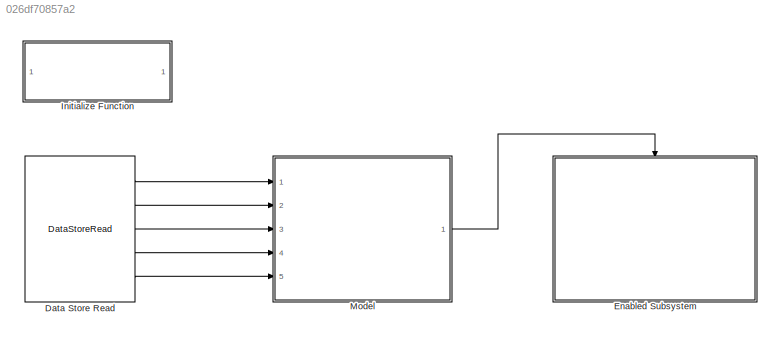
MODEL slx_026df70857a2
KIND model
WORKSPACE source: mxarray member
WORKSPACE debounce = 4
WORKSPACE debounce_cnt_def: Simulink.Parameter (value not decoded)
BLOCK [DataStoreRead] Data Store Read
  DataStoreElements = sys_regs.holdings(101)#sys_regs.holdings(102)#sys_regs.holdings(103)#sys_regs.holdings(37)#sys_regs.holdings(105)
  DataStoreName = sys_regs
  IndexOptions = Index vector (dialog)
  Indices = 1
  OutputSizes = 1
  Ports = [0, 5]
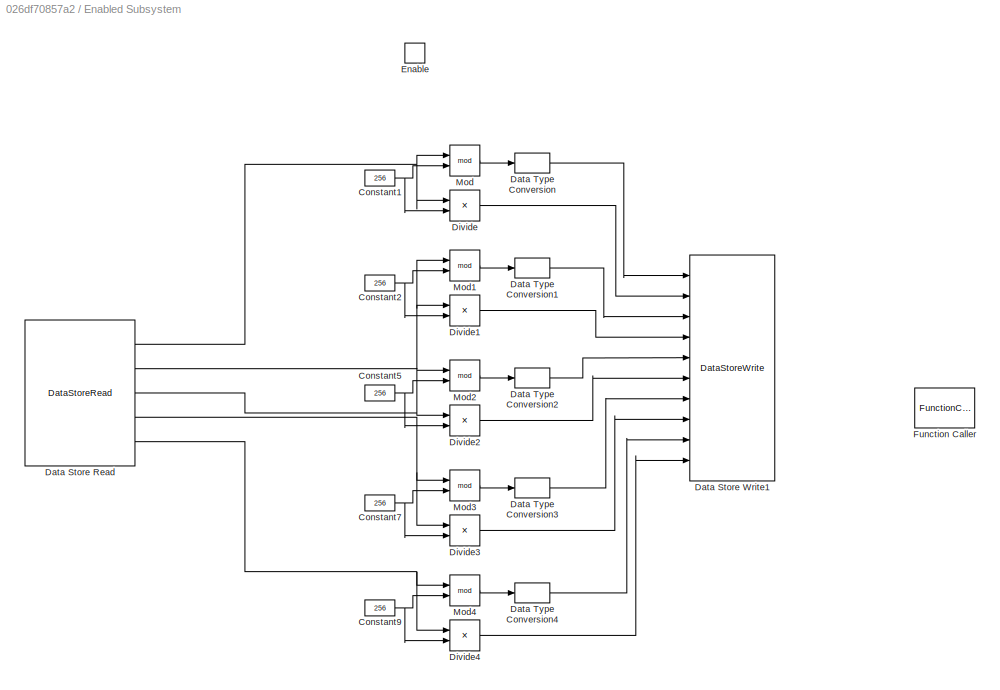
BLOCK [SubSystem] Enabled Subsystem
  Ports = [0, 0, 1]
  RequestExecContextInheritance = off
  TreatAsAtomicUnit = on
BLOCK [Constant] Enabled Subsystem/Constant1
  OutDataTypeStr = int16
  Value = 256
BLOCK [Constant] Enabled Subsystem/Constant2
  OutDataTypeStr = int16
  Value = 256
BLOCK [Constant] Enabled Subsystem/Constant5
  OutDataTypeStr = int16
  Value = 256
BLOCK [Constant] Enabled Subsystem/Constant7
  OutDataTypeStr = int16
  Value = 256
BLOCK [Constant] Enabled Subsystem/Constant9
  OutDataTypeStr = int16
  Value = 256
BLOCK [DataStoreRead] Enabled Subsystem/Data Store Read
  DataStoreElements = sys_regs.holdings(101)#sys_regs.holdings(102)#sys_regs.holdings(103)#sys_regs.holdings(37)#sys_regs.holdings(105)
  DataStoreName = sys_regs
  IndexOptions = Index vector (dialog)
  Indices = 1
  OutputSizes = 1
  Ports = [0, 5]
BLOCK [DataStoreWrite] Enabled Subsystem/Data Store Write1
  DataStoreElements = ee_ram(1)#ee_ram(2)#ee_ram(3)#ee_ram(4)#ee_ram(5)#ee_ram(6)#ee_ram(7)#ee_ram(8)#ee_ram(9)#ee_ram(10)
  DataStoreName = ee_ram
  IndexOptions = Index vector (dialog)
  Indices = 1
  OutputSizes = 1
  Ports = [10]
BLOCK [DataTypeConversion] Enabled Subsystem/Data Type Conversion
  OutDataTypeStr = uint8
  RndMeth = Floor
  SaturateOnIntegerOverflow = off
BLOCK [DataTypeConversion] Enabled Subsystem/Data Type Conversion1
  OutDataTypeStr = uint8
  RndMeth = Floor
  SaturateOnIntegerOverflow = off
BLOCK [DataTypeConversion] Enabled Subsystem/Data Type Conversion2
  OutDataTypeStr = uint8
  RndMeth = Floor
  SaturateOnIntegerOverflow = off
BLOCK [DataTypeConversion] Enabled Subsystem/Data Type Conversion3
  OutDataTypeStr = uint8
  RndMeth = Floor
  SaturateOnIntegerOverflow = off
BLOCK [DataTypeConversion] Enabled Subsystem/Data Type Conversion4
  OutDataTypeStr = uint8
  RndMeth = Floor
  SaturateOnIntegerOverflow = off
BLOCK [Product] Enabled Subsystem/Divide
  Inputs = */
  OutDataTypeStr = uint8
  Ports = [2, 1]
BLOCK [Product] Enabled Subsystem/Divide1
  Inputs = */
  OutDataTypeStr = uint8
  Ports = [2, 1]
BLOCK [Product] Enabled Subsystem/Divide2
  Inputs = */
  OutDataTypeStr = uint8
  Ports = [2, 1]
BLOCK [Product] Enabled Subsystem/Divide3
  Inputs = */
  OutDataTypeStr = uint8
  Ports = [2, 1]
BLOCK [Product] Enabled Subsystem/Divide4
  Inputs = */
  OutDataTypeStr = uint8
  Ports = [2, 1]
BLOCK [EnablePort] Enabled Subsystem/Enable
  Ports = []
BLOCK [FunctionCaller] Enabled Subsystem/Function Caller
  FunctionPrototype = ee_commit()
  InputArgumentSpecifications = <Enter example>
  OutputArgumentSpecifications = <Enter example>
  Ports = []
BLOCK [Math] Enabled Subsystem/Mod
  Operator = mod
  OutputSignalType = real
  Ports = [2, 1]
BLOCK [Math] Enabled Subsystem/Mod1
  Operator = mod
  OutputSignalType = real
  Ports = [2, 1]
BLOCK [Math] Enabled Subsystem/Mod2
  Operator = mod
  OutputSignalType = real
  Ports = [2, 1]
BLOCK [Math] Enabled Subsystem/Mod3
  Operator = mod
  OutputSignalType = real
  Ports = [2, 1]
BLOCK [Math] Enabled Subsystem/Mod4
  Operator = mod
  OutputSignalType = real
  Ports = [2, 1]
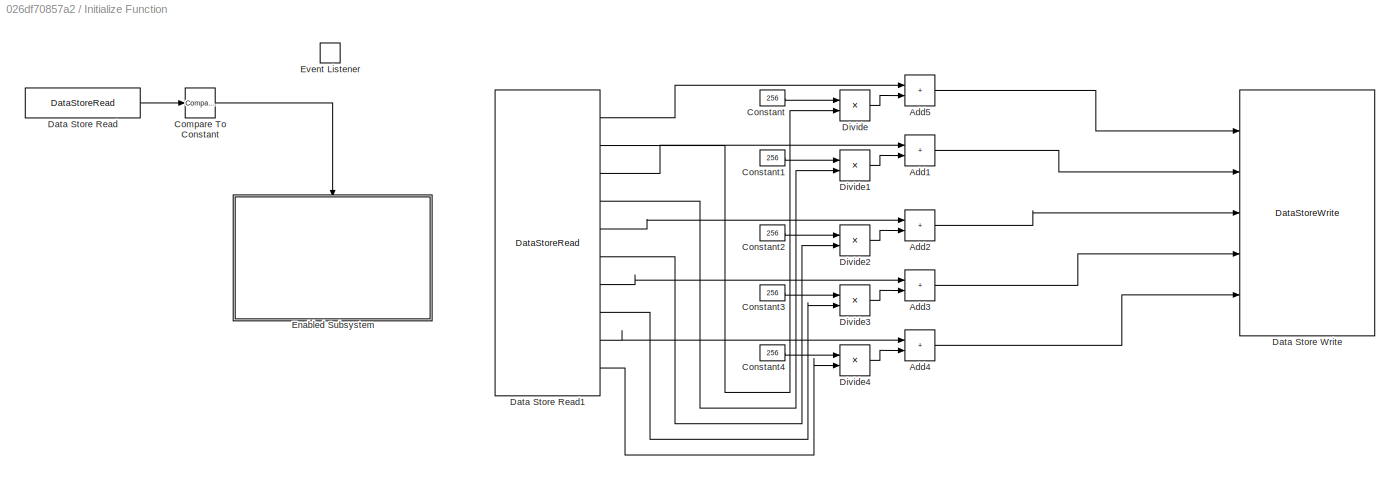
BLOCK [SubSystem] Initialize Function
  Ports = []
  RequestExecContextInheritance = off
  TreatAsAtomicUnit = on
BLOCK [Sum] Initialize Function/Add1
  IconShape = rectangular
  OutDataTypeStr = int16
  Ports = [2, 1]
BLOCK [Sum] Initialize Function/Add2
  IconShape = rectangular
  OutDataTypeStr = int16
  Ports = [2, 1]
BLOCK [Sum] Initialize Function/Add3
  IconShape = rectangular
  OutDataTypeStr = int16
  Ports = [2, 1]
BLOCK [Sum] Initialize Function/Add4
  IconShape = rectangular
  OutDataTypeStr = int16
  Ports = [2, 1]
BLOCK [Sum] Initialize Function/Add5
  IconShape = rectangular
  OutDataTypeStr = int16
  Ports = [2, 1]
BLOCK [Reference] Initialize Function/Compare To Constant  REF=simulink/Logic and Bit
Operations/Compare
To Constant
  Ports = [1, 1]
  SourceBlock = simulink/Logic and Bit\nOperations/Compare\nTo Constant
  SourceProductBaseCode = SL
  SourceType = Compare To Constant
BLOCK [Constant] Initialize Function/Constant
  OutDataTypeStr = int16
  Value = 256
BLOCK [Constant] Initialize Function/Constant1
  OutDataTypeStr = int16
  Value = 256
BLOCK [Constant] Initialize Function/Constant2
  OutDataTypeStr = int16
  Value = 256
BLOCK [Constant] Initialize Function/Constant3
  OutDataTypeStr = int16
  Value = 256
BLOCK [Constant] Initialize Function/Constant4
  OutDataTypeStr = int16
  Value = 256
BLOCK [DataStoreRead] Initialize Function/Data Store Read
  DataStoreElements = ee_ram(101)
  DataStoreName = ee_ram
  IndexOptions = Index vector (dialog)
  Indices = 1
  OutputSizes = 1
  Ports = [0, 1]
BLOCK [DataStoreRead] Initialize Function/Data Store Read1
  DataStoreElements = ee_ram(1)#ee_ram(2)#ee_ram(3)#ee_ram(4)#ee_ram(5)#ee_ram(6)#ee_ram(7)#ee_ram(8)#ee_ram(9)#ee_ram(10)
  DataStoreName = ee_ram
  IndexOptions = Index vector (dialog)
  Indices = 1
  OutputSizes = 1
  Ports = [0, 10]
BLOCK [DataStoreWrite] Initialize Function/Data Store Write
  DataStoreElements = sys_regs.holdings(101)#sys_regs.holdings(102)#sys_regs.holdings(103)#sys_regs.holdings(37)#sys_regs.holdings(105)
  DataStoreName = sys_regs
  IndexOptions = Index vector (dialog)
  Indices = 1
  OutputSizes = 1
  Ports = [5]
BLOCK [Product] Initialize Function/Divide
  Inputs = **
  OutDataTypeStr = int16
  Ports = [2, 1]
BLOCK [Product] Initialize Function/Divide1
  Inputs = **
  Ports = [2, 1]
BLOCK [Product] Initialize Function/Divide2
  Inputs = **
  Ports = [2, 1]
BLOCK [Product] Initialize Function/Divide3
  Inputs = **
  Ports = [2, 1]
BLOCK [Product] Initialize Function/Divide4
  Inputs = **
  Ports = [2, 1]
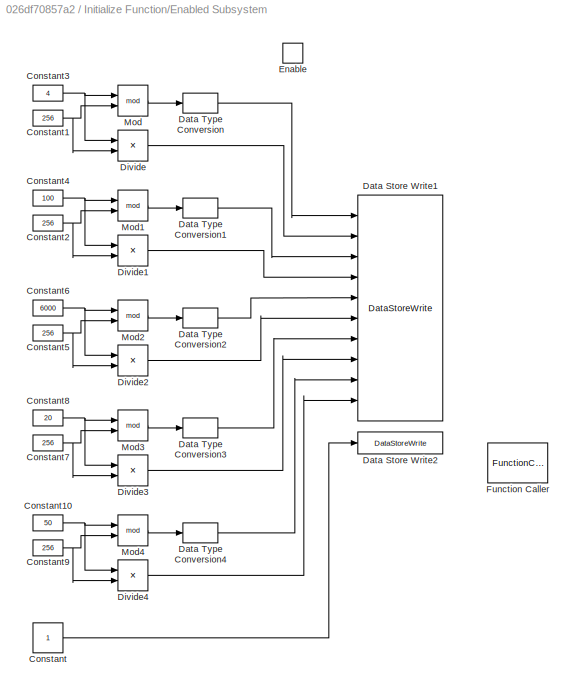
BLOCK [SubSystem] Initialize Function/Enabled Subsystem
  Ports = [0, 0, 1]
  RequestExecContextInheritance = off
  TreatAsAtomicUnit = on
BLOCK [Constant] Initialize Function/Enabled Subsystem/Constant
  OutDataTypeStr = uint8
BLOCK [Constant] Initialize Function/Enabled Subsystem/Constant1
  OutDataTypeStr = int16
  Value = 256
BLOCK [Constant] Initialize Function/Enabled Subsystem/Constant10
  OutDataTypeStr = int16
  Value = 50
BLOCK [Constant] Initialize Function/Enabled Subsystem/Constant2
  OutDataTypeStr = int16
  Value = 256
BLOCK [Constant] Initialize Function/Enabled Subsystem/Constant3
  OutDataTypeStr = int16
  Value = 4
BLOCK [Constant] Initialize Function/Enabled Subsystem/Constant4
  OutDataTypeStr = int16
  Value = 100
BLOCK [Constant] Initialize Function/Enabled Subsystem/Constant5
  OutDataTypeStr = int16
  Value = 256
BLOCK [Constant] Initialize Function/Enabled Subsystem/Constant6
  OutDataTypeStr = int16
  Value = 6000
BLOCK [Constant] Initialize Function/Enabled Subsystem/Constant7
  OutDataTypeStr = int16
  Value = 256
BLOCK [Constant] Initialize Function/Enabled Subsystem/Constant8
  OutDataTypeStr = int16
  Value = 20
BLOCK [Constant] Initialize Function/Enabled Subsystem/Constant9
  OutDataTypeStr = int16
  Value = 256
BLOCK [DataStoreWrite] Initialize Function/Enabled Subsystem/Data Store Write1
  DataStoreElements = ee_ram(1)#ee_ram(2)#ee_ram(3)#ee_ram(4)#ee_ram(5)#ee_ram(6)#ee_ram(7)#ee_ram(8)#ee_ram(9)#ee_ram(10)
  DataStoreName = ee_ram
  IndexOptions = Index vector (dialog)
  Indices = 1
  OutputSizes = 1
  Ports = [10]
BLOCK [DataStoreWrite] Initialize Function/Enabled Subsystem/Data Store Write2
  DataStoreElements = ee_ram(101)
  DataStoreName = ee_ram
  IndexOptions = Index vector (dialog)
  Indices = 1
  OutputSizes = 1
  Ports = [1]
BLOCK [DataTypeConversion] Initialize Function/Enabled Subsystem/Data Type Conversion
  OutDataTypeStr = uint8
  RndMeth = Floor
  SaturateOnIntegerOverflow = off
BLOCK [DataTypeConversion] Initialize Function/Enabled Subsystem/Data Type Conversion1
  OutDataTypeStr = uint8
  RndMeth = Floor
  SaturateOnIntegerOverflow = off
BLOCK [DataTypeConversion] Initialize Function/Enabled Subsystem/Data Type Conversion2
  OutDataTypeStr = uint8
  RndMeth = Floor
  SaturateOnIntegerOverflow = off
BLOCK [DataTypeConversion] Initialize Function/Enabled Subsystem/Data Type Conversion3
  OutDataTypeStr = uint8
  RndMeth = Floor
  SaturateOnIntegerOverflow = off
BLOCK [DataTypeConversion] Initialize Function/Enabled Subsystem/Data Type Conversion4
  OutDataTypeStr = uint8
  RndMeth = Floor
  SaturateOnIntegerOverflow = off
BLOCK [Product] Initialize Function/Enabled Subsystem/Divide
  Inputs = */
  OutDataTypeStr = uint8
  Ports = [2, 1]
BLOCK [Product] Initialize Function/Enabled Subsystem/Divide1
  Inputs = */
  OutDataTypeStr = uint8
  Ports = [2, 1]
BLOCK [Product] Initialize Function/Enabled Subsystem/Divide2
  Inputs = */
  OutDataTypeStr = uint8
  Ports = [2, 1]
BLOCK [Product] Initialize Function/Enabled Subsystem/Divide3
  Inputs = */
  OutDataTypeStr = uint8
  Ports = [2, 1]
BLOCK [Product] Initialize Function/Enabled Subsystem/Divide4
  Inputs = */
  OutDataTypeStr = uint8
  Ports = [2, 1]
BLOCK [EnablePort] Initialize Function/Enabled Subsystem/Enable
  Ports = []
BLOCK [FunctionCaller] Initialize Function/Enabled Subsystem/Function Caller
  FunctionPrototype = ee_commit()
  InputArgumentSpecifications = <Enter example>
  OutputArgumentSpecifications = <Enter example>
  Ports = []
BLOCK [Math] Initialize Function/Enabled Subsystem/Mod
  Operator = mod
  OutputSignalType = real
  Ports = [2, 1]
BLOCK [Math] Initialize Function/Enabled Subsystem/Mod1
  Operator = mod
  OutputSignalType = real
  Ports = [2, 1]
BLOCK [Math] Initialize Function/Enabled Subsystem/Mod2
  Operator = mod
  OutputSignalType = real
  Ports = [2, 1]
BLOCK [Math] Initialize Function/Enabled Subsystem/Mod3
  Operator = mod
  OutputSignalType = real
  Ports = [2, 1]
BLOCK [Math] Initialize Function/Enabled Subsystem/Mod4
  Operator = mod
  OutputSignalType = real
  Ports = [2, 1]
BLOCK [EventListener] Initialize Function/Event Listener
  DisableCoverage = on
  EventName = reset
BLOCK [ModelReference] Model
  ModelNameDialog = change_monitor.slx
  ModelReferenceVersion = 1.14
  Ports = [5, 1]
LINE Data Store Read:1 -> Model:1
LINE Data Store Read:2 -> Model:2
LINE Data Store Read:3 -> Model:3
LINE Data Store Read:4 -> Model:4
LINE Data Store Read:5 -> Model:5
NET Enabled Subsystem/Constant1:1 -> Enabled Subsystem/Divide:2, Enabled Subsystem/Mod:2
NET Enabled Subsystem/Constant2:1 -> Enabled Subsystem/Divide1:2, Enabled Subsystem/Mod1:2
NET Enabled Subsystem/Constant5:1 -> Enabled Subsystem/Divide2:2, Enabled Subsystem/Mod2:2
NET Enabled Subsystem/Constant7:1 -> Enabled Subsystem/Divide3:2, Enabled Subsystem/Mod3:2
NET Enabled Subsystem/Constant9:1 -> Enabled Subsystem/Divide4:2, Enabled Subsystem/Mod4:2
NET Enabled Subsystem/Data Store Read:1 -> Enabled Subsystem/Divide:1, Enabled Subsystem/Mod:1
NET Enabled Subsystem/Data Store Read:2 -> Enabled Subsystem/Divide1:1, Enabled Subsystem/Mod1:1
NET Enabled Subsystem/Data Store Read:3 -> Enabled Subsystem/Divide2:1, Enabled Subsystem/Mod2:1
NET Enabled Subsystem/Data Store Read:4 -> Enabled Subsystem/Divide3:1, Enabled Subsystem/Mod3:1
NET Enabled Subsystem/Data Store Read:5 -> Enabled Subsystem/Divide4:1, Enabled Subsystem/Mod4:1
LINE Enabled Subsystem/Data Type Conversion1:1 -> Enabled Subsystem/Data Store Write1:3
LINE Enabled Subsystem/Data Type Conversion2:1 -> Enabled Subsystem/Data Store Write1:5
LINE Enabled Subsystem/Data Type Conversion3:1 -> Enabled Subsystem/Data Store Write1:7
LINE Enabled Subsystem/Data Type Conversion4:1 -> Enabled Subsystem/Data Store Write1:9
LINE Enabled Subsystem/Data Type Conversion:1 -> Enabled Subsystem/Data Store Write1:1
LINE Enabled Subsystem/Divide1:1 -> Enabled Subsystem/Data Store Write1:4
LINE Enabled Subsystem/Divide2:1 -> Enabled Subsystem/Data Store Write1:6
LINE Enabled Subsystem/Divide3:1 -> Enabled Subsystem/Data Store Write1:8
LINE Enabled Subsystem/Divide4:1 -> Enabled Subsystem/Data Store Write1:10
LINE Enabled Subsystem/Divide:1 -> Enabled Subsystem/Data Store Write1:2
LINE Enabled Subsystem/Mod1:1 -> Enabled Subsystem/Data Type Conversion1:1
LINE Enabled Subsystem/Mod2:1 -> Enabled Subsystem/Data Type Conversion2:1
LINE Enabled Subsystem/Mod3:1 -> Enabled Subsystem/Data Type Conversion3:1
LINE Enabled Subsystem/Mod4:1 -> Enabled Subsystem/Data Type Conversion4:1
LINE Enabled Subsystem/Mod:1 -> Enabled Subsystem/Data Type Conversion:1
LINE Initialize Function/Add1:1 -> Initialize Function/Data Store Write:2
LINE Initialize Function/Add2:1 -> Initialize Function/Data Store Write:3
LINE Initialize Function/Add3:1 -> Initialize Function/Data Store Write:4
LINE Initialize Function/Add4:1 -> Initialize Function/Data Store Write:5
LINE Initialize Function/Add5:1 -> Initialize Function/Data Store Write:1
LINE Initialize Function/Compare To Constant:1 -> Initialize Function/Enabled Subsystem:enable
LINE Initialize Function/Constant1:1 -> Initialize Function/Divide1:1
LINE Initialize Function/Constant2:1 -> Initialize Function/Divide2:1
LINE Initialize Function/Constant3:1 -> Initialize Function/Divide3:1
LINE Initialize Function/Constant4:1 -> Initialize Function/Divide4:1
LINE Initialize Function/Constant:1 -> Initialize Function/Divide:1
LINE Initialize Function/Data Store Read1:1 -> Initialize Function/Add5:1
LINE Initialize Function/Data Store Read1:10 -> Initialize Function/Divide4:2
LINE Initialize Function/Data Store Read1:2 -> Initialize Function/Divide:2
LINE Initialize Function/Data Store Read1:3 -> Initialize Function/Add1:1
LINE Initialize Function/Data Store Read1:4 -> Initialize Function/Divide1:2
LINE Initialize Function/Data Store Read1:5 -> Initialize Function/Add2:1
LINE Initialize Function/Data Store Read1:6 -> Initialize Function/Divide2:2
LINE Initialize Function/Data Store Read1:7 -> Initialize Function/Add3:1
LINE Initialize Function/Data Store Read1:8 -> Initialize Function/Divide3:2
LINE Initialize Function/Data Store Read1:9 -> Initialize Function/Add4:1
LINE Initialize Function/Data Store Read:1 -> Initialize Function/Compare To Constant:1
LINE Initialize Function/Divide1:1 -> Initialize Function/Add1:2
LINE Initialize Function/Divide2:1 -> Initialize Function/Add2:2
LINE Initialize Function/Divide3:1 -> Initialize Function/Add3:2
LINE Initialize Function/Divide4:1 -> Initialize Function/Add4:2
LINE Initialize Function/Divide:1 -> Initialize Function/Add5:2
NET Initialize Function/Enabled Subsystem/Constant10:1 -> Initialize Function/Enabled Subsystem/Divide4:1, Initialize Function/Enabled Subsystem/Mod4:1
NET Initialize Function/Enabled Subsystem/Constant1:1 -> Initialize Function/Enabled Subsystem/Divide:2, Initialize Function/Enabled Subsystem/Mod:2
NET Initialize Function/Enabled Subsystem/Constant2:1 -> Initialize Function/Enabled Subsystem/Divide1:2, Initialize Function/Enabled Subsystem/Mod1:2
NET Initialize Function/Enabled Subsystem/Constant3:1 -> Initialize Function/Enabled Subsystem/Divide:1, Initialize Function/Enabled Subsystem/Mod:1
NET Initialize Function/Enabled Subsystem/Constant4:1 -> Initialize Function/Enabled Subsystem/Divide1:1, Initialize Function/Enabled Subsystem/Mod1:1
NET Initialize Function/Enabled Subsystem/Constant5:1 -> Initialize Function/Enabled Subsystem/Divide2:2, Initialize Function/Enabled Subsystem/Mod2:2
NET Initialize Function/Enabled Subsystem/Constant6:1 -> Initialize Function/Enabled Subsystem/Divide2:1, Initialize Function/Enabled Subsystem/Mod2:1
NET Initialize Function/Enabled Subsystem/Constant7:1 -> Initialize Function/Enabled Subsystem/Divide3:2, Initialize Function/Enabled Subsystem/Mod3:2
NET Initialize Function/Enabled Subsystem/Constant8:1 -> Initialize Function/Enabled Subsystem/Divide3:1, Initialize Function/Enabled Subsystem/Mod3:1
NET Initialize Function/Enabled Subsystem/Constant9:1 -> Initialize Function/Enabled Subsystem/Divide4:2, Initialize Function/Enabled Subsystem/Mod4:2
LINE Initialize Function/Enabled Subsystem/Constant:1 -> Initialize Function/Enabled Subsystem/Data Store Write2:1
LINE Initialize Function/Enabled Subsystem/Data Type Conversion1:1 -> Initialize Function/Enabled Subsystem/Data Store Write1:3
LINE Initialize Function/Enabled Subsystem/Data Type Conversion2:1 -> Initialize Function/Enabled Subsystem/Data Store Write1:5
LINE Initialize Function/Enabled Subsystem/Data Type Conversion3:1 -> Initialize Function/Enabled Subsystem/Data Store Write1:7
LINE Initialize Function/Enabled Subsystem/Data Type Conversion4:1 -> Initialize Function/Enabled Subsystem/Data Store Write1:9
LINE Initialize Function/Enabled Subsystem/Data Type Conversion:1 -> Initialize Function/Enabled Subsystem/Data Store Write1:1
LINE Initialize Function/Enabled Subsystem/Divide1:1 -> Initialize Function/Enabled Subsystem/Data Store Write1:4
LINE Initialize Function/Enabled Subsystem/Divide2:1 -> Initialize Function/Enabled Subsystem/Data Store Write1:6
LINE Initialize Function/Enabled Subsystem/Divide3:1 -> Initialize Function/Enabled Subsystem/Data Store Write1:8
LINE Initialize Function/Enabled Subsystem/Divide4:1 -> Initialize Function/Enabled Subsystem/Data Store Write1:10
LINE Initialize Function/Enabled Subsystem/Divide:1 -> Initialize Function/Enabled Subsystem/Data Store Write1:2
LINE Initialize Function/Enabled Subsystem/Mod1:1 -> Initialize Function/Enabled Subsystem/Data Type Conversion1:1
LINE Initialize Function/Enabled Subsystem/Mod2:1 -> Initialize Function/Enabled Subsystem/Data Type Conversion2:1
LINE Initialize Function/Enabled Subsystem/Mod3:1 -> Initialize Function/Enabled Subsystem/Data Type Conversion3:1
LINE Initialize Function/Enabled Subsystem/Mod4:1 -> Initialize Function/Enabled Subsystem/Data Type Conversion4:1
LINE Initialize Function/Enabled Subsystem/Mod:1 -> Initialize Function/Enabled Subsystem/Data Type Conversion:1
LINE Model:1 -> Enabled Subsystem:enable
note: NET lines group one-source signal fan-out (src -> all destinations, sorted); 1:1 wires keep LINE
